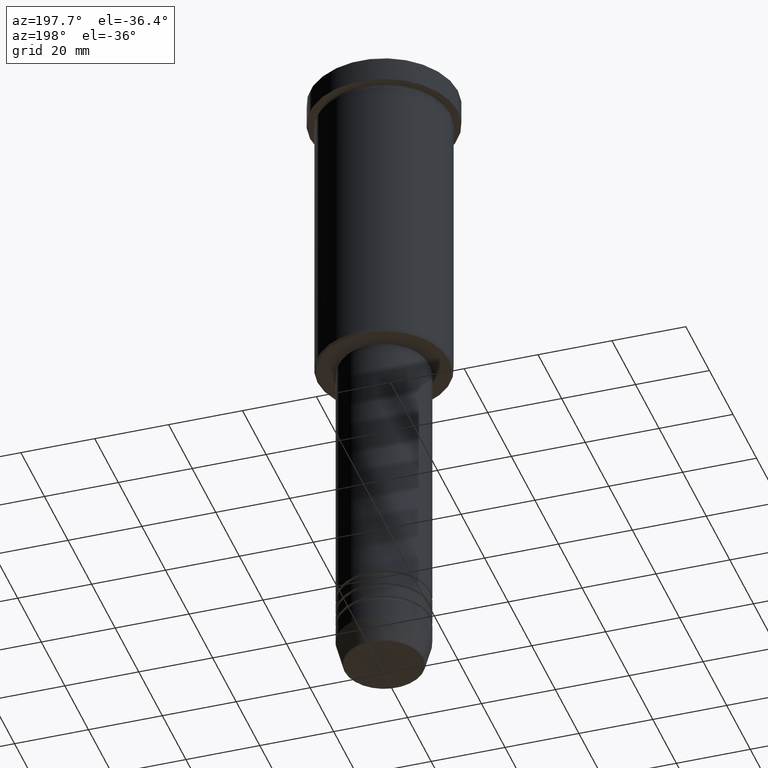
[diagram: clean part render]
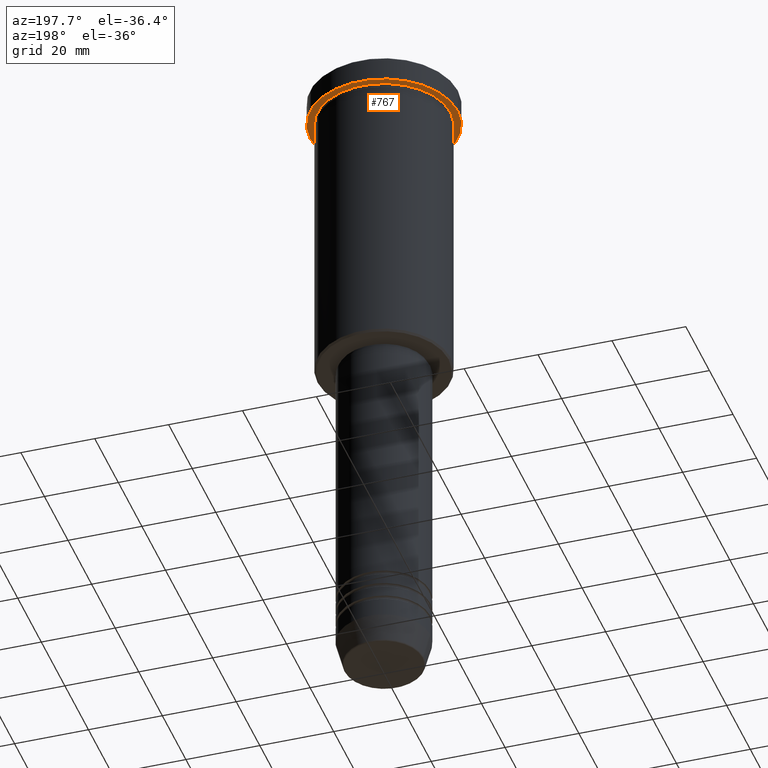
[diagram: same view with one face highlighted and labeled with its STEP entity id]
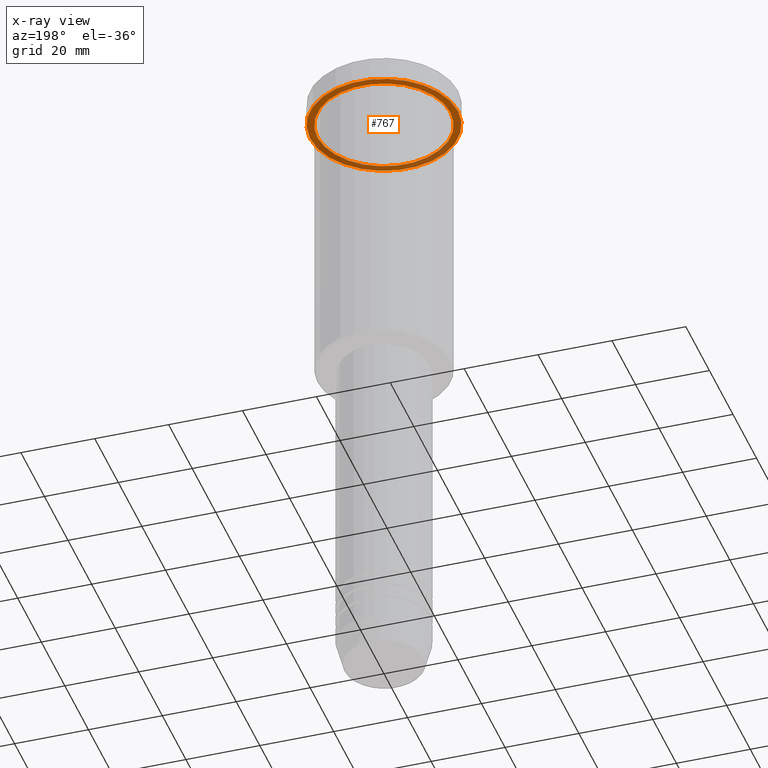
[diagram: x-ray of the same camera — body ghosted, the highlighted face saturated]
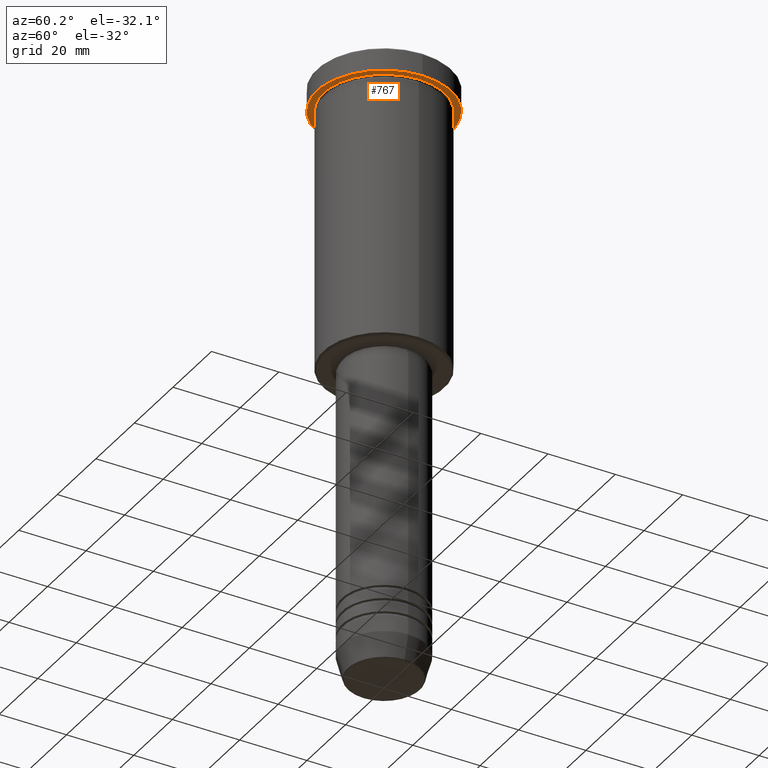
[diagram: same view with one face highlighted and labeled with its STEP entity id]
A machine part, auxiliary view. The second image highlights one B-rep face of the part: STEP entity #767.
The next image is the same camera in x-ray: the body ghosted, the highlighted face saturated — about 35% of this face is hidden behind the body in this view.
A second angle (auxiliary view) of the same face is appended — the face is thin or edge-on in the first view.
In plain terms, the highlighted planar face has unit normal (0, 0, -1).
Its self-contained STEP definition (entity closure, byte-faithful):
#10 = CIRCLE ( 'NONE', #680, 20.00000000000000000 ) ;
#46 = DIRECTION ( 'NONE',  ( -0.000000000000000000, -0.000000000000000000, 1.000000000000000000 ) ) ;
#66 = CIRCLE ( 'NONE', #423, 20.00000000000000000 ) ;
#89 = FACE_BOUND ( 'NONE', #652, .T. ) ;
#97 = DIRECTION ( 'NONE',  ( 1.000000000000000000, 0.000000000000000000, 0.000000000000000000 ) ) ;
#134 = EDGE_CURVE ( 'NONE', #1033, #1156, #440, .T. ) ;
#155 = CARTESIAN_POINT ( 'NONE',  ( 20.00000000000000000, 0.000000000000000000, -6.999999999999995559 ) ) ;
#193 = CARTESIAN_POINT ( 'NONE',  ( 0.000000000000000000, 0.000000000000000000, -6.999999999999995559 ) ) ;
#233 = CARTESIAN_POINT ( 'NONE',  ( 0.000000000000000000, 0.000000000000000000, -6.999999999999995559 ) ) ;
#250 = VERTEX_POINT ( 'NONE', #155 ) ;
#265 = DIRECTION ( 'NONE',  ( -0.000000000000000000, -0.000000000000000000, 1.000000000000000000 ) ) ;
#328 = DIRECTION ( 'NONE',  ( -1.000000000000000000, 0.000000000000000000, 0.000000000000000000 ) ) ;
#344 = DIRECTION ( 'NONE',  ( -0.000000000000000000, -0.000000000000000000, 1.000000000000000000 ) ) ;
#389 = DIRECTION ( 'NONE',  ( 1.000000000000000000, 0.000000000000000000, 0.000000000000000000 ) ) ;
#421 = EDGE_CURVE ( 'NONE', #845, #250, #66, .T. ) ;
#423 = AXIS2_PLACEMENT_3D ( 'NONE', #193, #265, #97 ) ;
#440 = CIRCLE ( 'NONE', #659, 18.00000000000000000 ) ;
#449 = FACE_OUTER_BOUND ( 'NONE', #651, .T. ) ;
#454 = CARTESIAN_POINT ( 'NONE',  ( 0.000000000000000000, 20.00000000000000000, -6.999999999999995559 ) ) ;
#517 = CARTESIAN_POINT ( 'NONE',  ( -18.00000000000000000, 0.000000000000000000, -6.999999999999995559 ) ) ;
#549 = ORIENTED_EDGE ( 'NONE', *, *, #421, .F. ) ;
#604 = EDGE_CURVE ( 'NONE', #1156, #1033, #1095, .T. ) ;
#651 = EDGE_LOOP ( 'NONE', ( #924, #549 ) ) ;
#652 = EDGE_LOOP ( 'NONE', ( #1123, #655 ) ) ;
#655 = ORIENTED_EDGE ( 'NONE', *, *, #134, .T. ) ;
#659 = AXIS2_PLACEMENT_3D ( 'NONE', #1131, #46, #1112 ) ;
#680 = AXIS2_PLACEMENT_3D ( 'NONE', #233, #960, #389 ) ;
#731 = PLANE ( 'NONE',  #1057 ) ;
#736 = DIRECTION ( 'NONE',  ( -1.000000000000000000, 0.000000000000000000, -0.000000000000000000 ) ) ;
#767 = ADVANCED_FACE ( 'NONE', ( #89, #449 ), #731, .T. ) ;
#827 = DIRECTION ( 'NONE',  ( 0.000000000000000000, 0.000000000000000000, -1.000000000000000000 ) ) ;
#842 = EDGE_CURVE ( 'NONE', #250, #845, #10, .T. ) ;
#845 = VERTEX_POINT ( 'NONE', #1129 ) ;
#880 = CARTESIAN_POINT ( 'NONE',  ( 0.000000000000000000, 0.000000000000000000, -6.999999999999995559 ) ) ;
#924 = ORIENTED_EDGE ( 'NONE', *, *, #842, .F. ) ;
#960 = DIRECTION ( 'NONE',  ( -0.000000000000000000, -0.000000000000000000, 1.000000000000000000 ) ) ;
#1004 = AXIS2_PLACEMENT_3D ( 'NONE', #880, #344, #328 ) ;
#1027 = CARTESIAN_POINT ( 'NONE',  ( 18.00000000000000000, 2.204364238465235428E-15, -6.999999999999995559 ) ) ;
#1033 = VERTEX_POINT ( 'NONE', #1027 ) ;
#1057 = AXIS2_PLACEMENT_3D ( 'NONE', #454, #827, #736 ) ;
#1095 = CIRCLE ( 'NONE', #1004, 18.00000000000000000 ) ;
#1112 = DIRECTION ( 'NONE',  ( -1.000000000000000000, 0.000000000000000000, 0.000000000000000000 ) ) ;
#1123 = ORIENTED_EDGE ( 'NONE', *, *, #604, .T. ) ;
#1129 = CARTESIAN_POINT ( 'NONE',  ( -20.00000000000000000, 2.449293598294706513E-15, -6.999999999999995559 ) ) ;
#1131 = CARTESIAN_POINT ( 'NONE',  ( 0.000000000000000000, 0.000000000000000000, -6.999999999999995559 ) ) ;
#1156 = VERTEX_POINT ( 'NONE', #517 ) ;